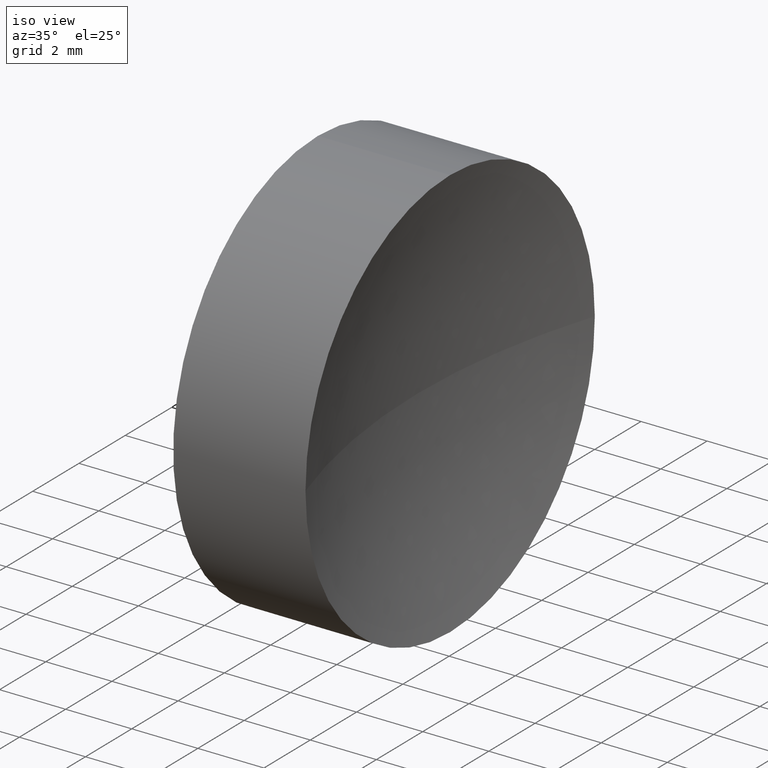
[diagram: clean part render]
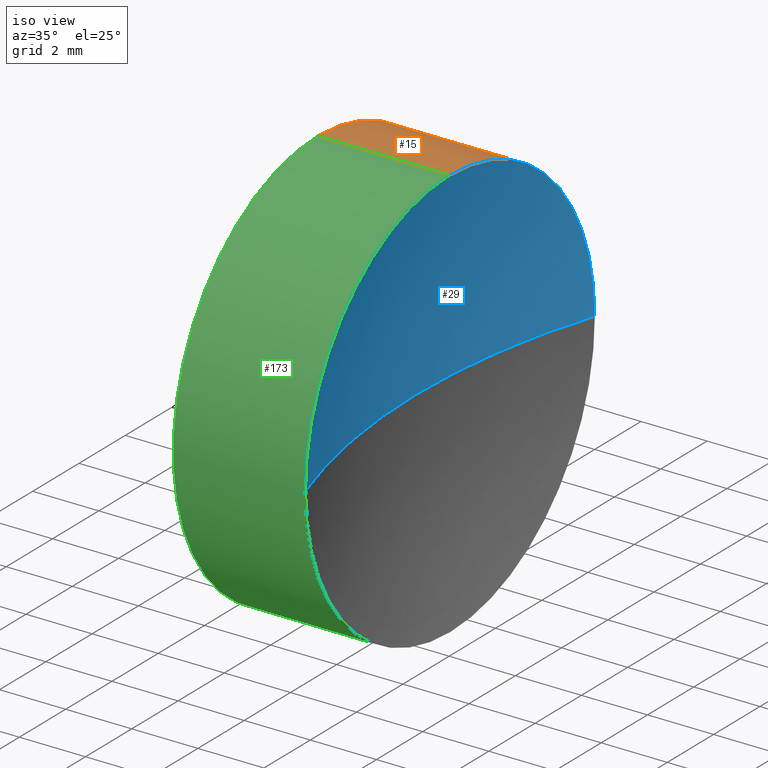
[diagram: same view with three faces highlighted in distinct colors, each labeled with its STEP entity id]
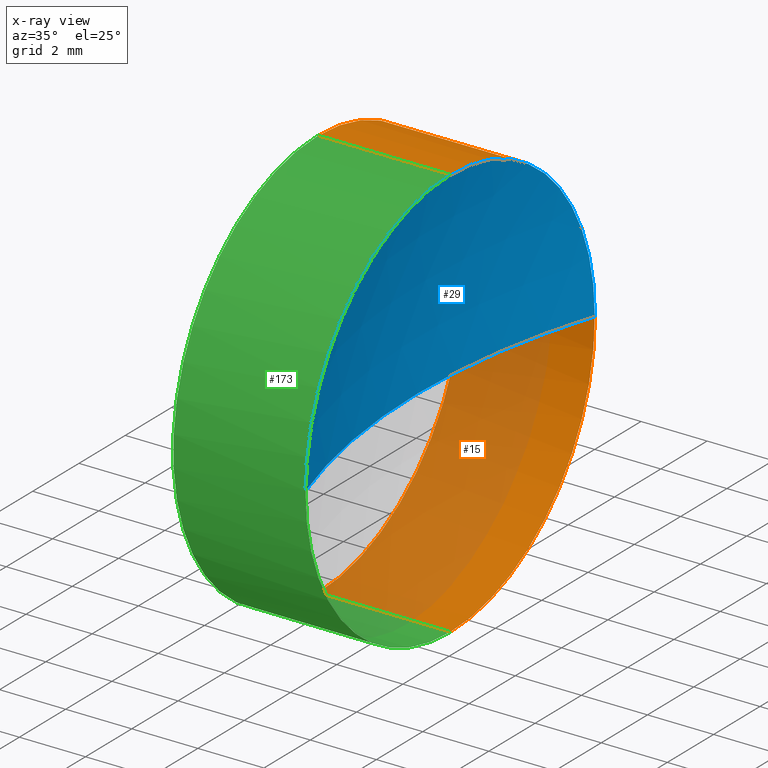
[diagram: x-ray of the same camera — body ghosted, the three highlighted faces saturated]
A machine part, iso view with three faces highlighted in distinct colors.
The next image is the same camera in x-ray (body ghosted, the three faces saturated) — at least one of them is partly hidden behind the body in this view.
Their STEP definitions:

[orange] entity #15 — the highlighted cylindrical surface (partial cylindrical patch) has radius 6.25 mm, axis along (-1, -0, -0).
#5 = CARTESIAN_POINT ( 'NONE',  ( 54.49257150108255100, 34.68901056168621700, 0.0000000000000000000 ) ) ;
#7 = CARTESIAN_POINT ( 'NONE',  ( 54.49257150108255100, 34.68901056168621700, 6.250000000000001800 ) ) ;
#11 = CARTESIAN_POINT ( 'NONE',  ( 54.49257150108255100, 34.68901056168621700, -6.250000000000001800 ) ) ;
#15 = ADVANCED_FACE ( 'NONE', ( #92 ), #122, .T. ) ;
#16 = AXIS2_PLACEMENT_3D ( 'NONE', #5, #133, #176 ) ;
#23 = CARTESIAN_POINT ( 'NONE',  ( 57.54632776745975800, 34.68901056168621700, 0.0000000000000000000 ) ) ;
#36 = CARTESIAN_POINT ( 'NONE',  ( 61.54797256450216000, 34.68901056168621700, 6.250000000000004400 ) ) ;
#37 = ORIENTED_EDGE ( 'NONE', *, *, #152, .F. ) ;
#38 = DIRECTION ( 'NONE',  ( 0.0000000000000000000, 0.0000000000000000000, 1.000000000000000000 ) ) ;
#39 = EDGE_LOOP ( 'NONE', ( #135, #72, #37, #165, #63 ) ) ;
#40 = EDGE_CURVE ( 'NONE', #51, #184, #105, .T. ) ;
#41 = DIRECTION ( 'NONE',  ( 0.0000000000000000000, 0.0000000000000000000, 1.000000000000000000 ) ) ;
#45 = DIRECTION ( 'NONE',  ( -1.000000000000000000, -0.0000000000000000000, -0.0000000000000000000 ) ) ;
#51 = VERTEX_POINT ( 'NONE', #36 ) ;
#56 = DIRECTION ( 'NONE',  ( -1.000000000000000000, -0.0000000000000000000, -0.0000000000000000000 ) ) ;
#57 = CARTESIAN_POINT ( 'NONE',  ( 57.54632776745975800, 34.68901056168621700, 6.249999999999998200 ) ) ;
#61 = CARTESIAN_POINT ( 'NONE',  ( 61.54797256450216000, 34.68901056168621700, -6.250000000000004400 ) ) ;
#62 = CARTESIAN_POINT ( 'NONE',  ( 61.54797256450216000, 40.93901056168623100, 7.654042494670971400E-016 ) ) ;
#63 = ORIENTED_EDGE ( 'NONE', *, *, #124, .T. ) ;
#67 = CARTESIAN_POINT ( 'NONE',  ( 61.54797256450216000, 34.68901056168621700, 0.0000000000000000000 ) ) ;
#71 = DIRECTION ( 'NONE',  ( -1.000000000000000000, -0.0000000000000000000, -0.0000000000000000000 ) ) ;
#72 = ORIENTED_EDGE ( 'NONE', *, *, #179, .T. ) ;
#74 = VECTOR ( 'NONE', #56, 1000.000000000000000 ) ;
#79 = DIRECTION ( 'NONE',  ( -1.000000000000000000, -0.0000000000000000000, -0.0000000000000000000 ) ) ;
#92 = FACE_OUTER_BOUND ( 'NONE', #39, .T. ) ;
#96 = LINE ( 'NONE', #11, #74 ) ;
#97 = VERTEX_POINT ( 'NONE', #62 ) ;
#105 = LINE ( 'NONE', #7, #177 ) ;
#113 = AXIS2_PLACEMENT_3D ( 'NONE', #23, #178, #125 ) ;
#119 = CARTESIAN_POINT ( 'NONE',  ( 61.54797256450216000, 34.68901056168621700, 0.0000000000000000000 ) ) ;
#122 = CYLINDRICAL_SURFACE ( 'NONE', #16, 6.250000000000001800 ) ;
#124 = EDGE_CURVE ( 'NONE', #51, #97, #157, .T. ) ;
#125 = DIRECTION ( 'NONE',  ( 0.0000000000000000000, 0.0000000000000000000, 1.000000000000000000 ) ) ;
#127 = VERTEX_POINT ( 'NONE', #61 ) ;
#128 = VERTEX_POINT ( 'NONE', #161 ) ;
#131 = CIRCLE ( 'NONE', #113, 6.249999999999998200 ) ;
#132 = AXIS2_PLACEMENT_3D ( 'NONE', #119, #71, #41 ) ;
#133 = DIRECTION ( 'NONE',  ( -1.000000000000000000, -0.0000000000000000000, -0.0000000000000000000 ) ) ;
#135 = ORIENTED_EDGE ( 'NONE', *, *, #168, .T. ) ;
#138 = CIRCLE ( 'NONE', #132, 6.250000000000005300 ) ;
#152 = EDGE_CURVE ( 'NONE', #184, #128, #131, .T. ) ;
#157 = CIRCLE ( 'NONE', #182, 6.250000000000005300 ) ;
#161 = CARTESIAN_POINT ( 'NONE',  ( 57.54632776745975800, 34.68901056168621700, -6.249999999999998200 ) ) ;
#165 = ORIENTED_EDGE ( 'NONE', *, *, #40, .F. ) ;
#168 = EDGE_CURVE ( 'NONE', #97, #127, #138, .T. ) ;
#176 = DIRECTION ( 'NONE',  ( 0.0000000000000000000, 0.0000000000000000000, 1.000000000000000000 ) ) ;
#177 = VECTOR ( 'NONE', #45, 1000.000000000000000 ) ;
#178 = DIRECTION ( 'NONE',  ( -1.000000000000000000, -0.0000000000000000000, -0.0000000000000000000 ) ) ;
#179 = EDGE_CURVE ( 'NONE', #127, #128, #96, .T. ) ;
#182 = AXIS2_PLACEMENT_3D ( 'NONE', #67, #79, #38 ) ;
#184 = VERTEX_POINT ( 'NONE', #57 ) ;

[blue] entity #29 — the highlighted spherical surface has radius 20 mm.
#2 = EDGE_CURVE ( 'NONE', #68, #51, #142, .T. ) ;
#3 = DIRECTION ( 'NONE',  ( -1.000000000000000000, -0.0000000000000000000, -0.0000000000000000000 ) ) ;
#4 = CARTESIAN_POINT ( 'NONE',  ( 80.54632775646548700, 34.68901056168621700, 0.0000000000000000000 ) ) ;
#12 = CIRCLE ( 'NONE', #170, 20.00000000000000400 ) ;
#17 = ORIENTED_EDGE ( 'NONE', *, *, #81, .T. ) ;
#19 = CARTESIAN_POINT ( 'NONE',  ( 61.54797256450216000, 28.43901056168620700, 0.0000000000000000000 ) ) ;
#20 = DIRECTION ( 'NONE',  ( 0.0000000000000000000, -1.000000000000000000, -1.224646799147353200E-016 ) ) ;
#22 = DIRECTION ( 'NONE',  ( 0.0000000000000000000, -1.000000000000000000, 0.0000000000000000000 ) ) ;
#29 = ADVANCED_FACE ( 'NONE', ( #98 ), #167, .F. ) ;
#35 = DIRECTION ( 'NONE',  ( 0.0000000000000000000, 0.0000000000000000000, -1.000000000000000000 ) ) ;
#36 = CARTESIAN_POINT ( 'NONE',  ( 61.54797256450216000, 34.68901056168621700, 6.250000000000004400 ) ) ;
#38 = DIRECTION ( 'NONE',  ( 0.0000000000000000000, 0.0000000000000000000, 1.000000000000000000 ) ) ;
#47 = CARTESIAN_POINT ( 'NONE',  ( 61.54797256450216000, 34.68901056168621700, 0.0000000000000000000 ) ) ;
#51 = VERTEX_POINT ( 'NONE', #36 ) ;
#52 = AXIS2_PLACEMENT_3D ( 'NONE', #47, #3, #151 ) ;
#62 = CARTESIAN_POINT ( 'NONE',  ( 61.54797256450216000, 40.93901056168623100, 7.654042494670971400E-016 ) ) ;
#64 = DIRECTION ( 'NONE',  ( -1.000000000000000000, 0.0000000000000000000, 0.0000000000000000000 ) ) ;
#67 = CARTESIAN_POINT ( 'NONE',  ( 61.54797256450216000, 34.68901056168621700, 0.0000000000000000000 ) ) ;
#68 = VERTEX_POINT ( 'NONE', #19 ) ;
#76 = EDGE_CURVE ( 'NONE', #97, #110, #12, .T. ) ;
#77 = ORIENTED_EDGE ( 'NONE', *, *, #2, .F. ) ;
#79 = DIRECTION ( 'NONE',  ( -1.000000000000000000, -0.0000000000000000000, -0.0000000000000000000 ) ) ;
#81 = EDGE_CURVE ( 'NONE', #68, #110, #160, .T. ) ;
#83 = AXIS2_PLACEMENT_3D ( 'NONE', #4, #35, #64 ) ;
#91 = CARTESIAN_POINT ( 'NONE',  ( 60.54632775646548700, 34.68901056168621700, 0.0000000000000000000 ) ) ;
#94 = DIRECTION ( 'NONE',  ( 0.0000000000000000000, 0.0000000000000000000, 1.000000000000000000 ) ) ;
#97 = VERTEX_POINT ( 'NONE', #62 ) ;
#98 = FACE_OUTER_BOUND ( 'NONE', #116, .T. ) ;
#101 = ORIENTED_EDGE ( 'NONE', *, *, #124, .F. ) ;
#102 = ORIENTED_EDGE ( 'NONE', *, *, #76, .F. ) ;
#104 = CARTESIAN_POINT ( 'NONE',  ( 80.54632775646548700, 34.68901056168621700, 0.0000000000000000000 ) ) ;
#106 = DIRECTION ( 'NONE',  ( 0.0000000000000000000, -1.224646799147353200E-016, 1.000000000000000000 ) ) ;
#107 = CARTESIAN_POINT ( 'NONE',  ( 80.54632775646548700, 34.68901056168621700, 0.0000000000000000000 ) ) ;
#110 = VERTEX_POINT ( 'NONE', #91 ) ;
#116 = EDGE_LOOP ( 'NONE', ( #102, #101, #77, #17 ) ) ;
#124 = EDGE_CURVE ( 'NONE', #51, #97, #157, .T. ) ;
#140 = AXIS2_PLACEMENT_3D ( 'NONE', #107, #94, #22 ) ;
#142 = CIRCLE ( 'NONE', #52, 6.250000000000005300 ) ;
#151 = DIRECTION ( 'NONE',  ( 0.0000000000000000000, 0.0000000000000000000, 1.000000000000000000 ) ) ;
#157 = CIRCLE ( 'NONE', #182, 6.250000000000005300 ) ;
#160 = CIRCLE ( 'NONE', #83, 20.00000000000000400 ) ;
#167 = SPHERICAL_SURFACE ( 'NONE', #140, 20.00000000000000400 ) ;
#170 = AXIS2_PLACEMENT_3D ( 'NONE', #104, #106, #20 ) ;
#182 = AXIS2_PLACEMENT_3D ( 'NONE', #67, #79, #38 ) ;

[green] entity #173 — the highlighted cylindrical surface (partial cylindrical patch) has radius 6.25 mm, axis along (-1, -0, -0).
#2 = EDGE_CURVE ( 'NONE', #68, #51, #142, .T. ) ;
#3 = DIRECTION ( 'NONE',  ( -1.000000000000000000, -0.0000000000000000000, -0.0000000000000000000 ) ) ;
#7 = CARTESIAN_POINT ( 'NONE',  ( 54.49257150108255100, 34.68901056168621700, 6.250000000000001800 ) ) ;
#11 = CARTESIAN_POINT ( 'NONE',  ( 54.49257150108255100, 34.68901056168621700, -6.250000000000001800 ) ) ;
#18 = DIRECTION ( 'NONE',  ( 0.0000000000000000000, 0.0000000000000000000, 1.000000000000000000 ) ) ;
#19 = CARTESIAN_POINT ( 'NONE',  ( 61.54797256450216000, 28.43901056168620700, 0.0000000000000000000 ) ) ;
#21 = DIRECTION ( 'NONE',  ( -1.000000000000000000, -0.0000000000000000000, -0.0000000000000000000 ) ) ;
#28 = CIRCLE ( 'NONE', #154, 6.249999999999998200 ) ;
#31 = EDGE_CURVE ( 'NONE', #128, #184, #28, .T. ) ;
#36 = CARTESIAN_POINT ( 'NONE',  ( 61.54797256450216000, 34.68901056168621700, 6.250000000000004400 ) ) ;
#40 = EDGE_CURVE ( 'NONE', #51, #184, #105, .T. ) ;
#44 = AXIS2_PLACEMENT_3D ( 'NONE', #114, #141, #86 ) ;
#45 = DIRECTION ( 'NONE',  ( -1.000000000000000000, -0.0000000000000000000, -0.0000000000000000000 ) ) ;
#47 = CARTESIAN_POINT ( 'NONE',  ( 61.54797256450216000, 34.68901056168621700, 0.0000000000000000000 ) ) ;
#48 = DIRECTION ( 'NONE',  ( 0.0000000000000000000, 0.0000000000000000000, 1.000000000000000000 ) ) ;
#51 = VERTEX_POINT ( 'NONE', #36 ) ;
#52 = AXIS2_PLACEMENT_3D ( 'NONE', #47, #3, #151 ) ;
#56 = DIRECTION ( 'NONE',  ( -1.000000000000000000, -0.0000000000000000000, -0.0000000000000000000 ) ) ;
#57 = CARTESIAN_POINT ( 'NONE',  ( 57.54632776745975800, 34.68901056168621700, 6.249999999999998200 ) ) ;
#58 = ORIENTED_EDGE ( 'NONE', *, *, #40, .T. ) ;
#61 = CARTESIAN_POINT ( 'NONE',  ( 61.54797256450216000, 34.68901056168621700, -6.250000000000004400 ) ) ;
#68 = VERTEX_POINT ( 'NONE', #19 ) ;
#74 = VECTOR ( 'NONE', #56, 1000.000000000000000 ) ;
#80 = CYLINDRICAL_SURFACE ( 'NONE', #44, 6.250000000000001800 ) ;
#85 = CIRCLE ( 'NONE', #103, 6.250000000000005300 ) ;
#86 = DIRECTION ( 'NONE',  ( 0.0000000000000000000, 0.0000000000000000000, 1.000000000000000000 ) ) ;
#90 = CARTESIAN_POINT ( 'NONE',  ( 57.54632776745975800, 34.68901056168621700, 0.0000000000000000000 ) ) ;
#96 = LINE ( 'NONE', #11, #74 ) ;
#99 = EDGE_CURVE ( 'NONE', #127, #68, #85, .T. ) ;
#103 = AXIS2_PLACEMENT_3D ( 'NONE', #150, #163, #18 ) ;
#105 = LINE ( 'NONE', #7, #177 ) ;
#109 = ORIENTED_EDGE ( 'NONE', *, *, #2, .T. ) ;
#112 = FACE_OUTER_BOUND ( 'NONE', #155, .T. ) ;
#114 = CARTESIAN_POINT ( 'NONE',  ( 54.49257150108255100, 34.68901056168621700, 0.0000000000000000000 ) ) ;
#127 = VERTEX_POINT ( 'NONE', #61 ) ;
#128 = VERTEX_POINT ( 'NONE', #161 ) ;
#141 = DIRECTION ( 'NONE',  ( -1.000000000000000000, -0.0000000000000000000, -0.0000000000000000000 ) ) ;
#142 = CIRCLE ( 'NONE', #52, 6.250000000000005300 ) ;
#145 = ORIENTED_EDGE ( 'NONE', *, *, #31, .F. ) ;
#150 = CARTESIAN_POINT ( 'NONE',  ( 61.54797256450216000, 34.68901056168621700, 0.0000000000000000000 ) ) ;
#151 = DIRECTION ( 'NONE',  ( 0.0000000000000000000, 0.0000000000000000000, 1.000000000000000000 ) ) ;
#154 = AXIS2_PLACEMENT_3D ( 'NONE', #90, #21, #48 ) ;
#155 = EDGE_LOOP ( 'NONE', ( #159, #162, #109, #58, #145 ) ) ;
#159 = ORIENTED_EDGE ( 'NONE', *, *, #179, .F. ) ;
#161 = CARTESIAN_POINT ( 'NONE',  ( 57.54632776745975800, 34.68901056168621700, -6.249999999999998200 ) ) ;
#162 = ORIENTED_EDGE ( 'NONE', *, *, #99, .T. ) ;
#163 = DIRECTION ( 'NONE',  ( -1.000000000000000000, -0.0000000000000000000, -0.0000000000000000000 ) ) ;
#173 = ADVANCED_FACE ( 'NONE', ( #112 ), #80, .T. ) ;
#177 = VECTOR ( 'NONE', #45, 1000.000000000000000 ) ;
#179 = EDGE_CURVE ( 'NONE', #127, #128, #96, .T. ) ;
#184 = VERTEX_POINT ( 'NONE', #57 ) ;